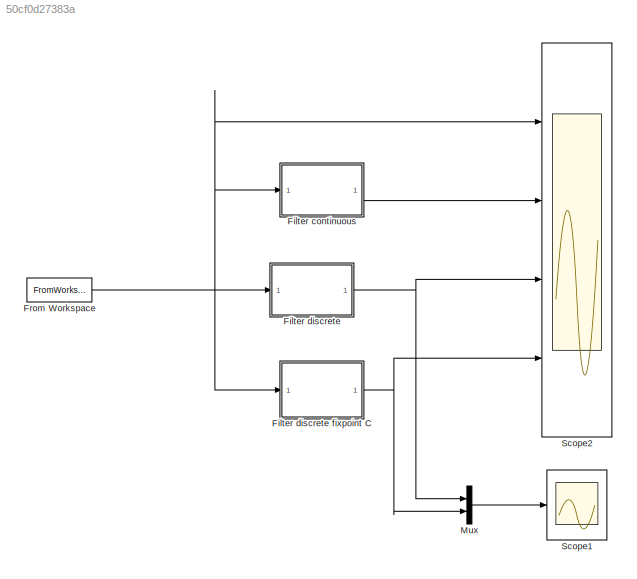
MODEL slx_50cf0d27383a
KIND model
CONFIG AbsTol = auto
CONFIG FixedStep = T
CONFIG MaxStep = auto
CONFIG MinStep = auto
CONFIG PreLoadFcn = poxi_init
CONFIG RelTol = 1e-3
CONFIG SampleTimeConstraint = Unconstrained
CONFIG Solver = ode4
CONFIG SolverMode = Auto
CONFIG SolverName = ode4
CONFIG StartTime = 0.0
CONFIG StopTime = 10
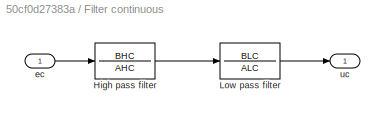
BLOCK [SubSystem] Filter continuous
  Ports = [1, 1]
  RequestExecContextInheritance = off
BLOCK [TransferFcn] Filter continuous/High pass filter
  Denominator = AHC
  Numerator = BHC
BLOCK [TransferFcn] Filter continuous/Low pass filter
  Denominator = ALC
  Numerator = BLC
BLOCK [Inport] Filter continuous/ec
  IconDisplay = Port number
BLOCK [Outport] Filter continuous/uc
  IconDisplay = Port number
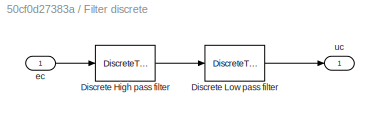
BLOCK [SubSystem] Filter discrete
  Ports = [1, 1]
  RequestExecContextInheritance = off
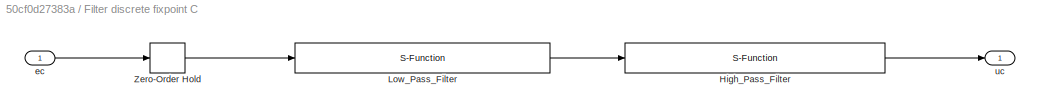
BLOCK [SubSystem] Filter discrete fixpoint C
  Ports = [1, 1]
  RequestExecContextInheritance = off
BLOCK [S-Function] Filter discrete fixpoint C/High_Pass_Filter
  FunctionName = High_Pass_Filter
  Ports = [1, 1]
BLOCK [S-Function] Filter discrete fixpoint C/Low_Pass_Filter
  FunctionName = Low_Pass_Filter
  Ports = [1, 1]
BLOCK [ZeroOrderHold] Filter discrete fixpoint C/Zero-Order Hold
  SampleTime = T
BLOCK [Inport] Filter discrete fixpoint C/ec
  IconDisplay = Port number
BLOCK [Outport] Filter discrete fixpoint C/uc
  IconDisplay = Port number
BLOCK [DiscreteTransferFcn] Filter discrete/Discrete High pass filter
  Denominator = AH
  InputPortMap = u0
  Numerator = BH
  Ports = [1, 1]
  SampleTime = T
BLOCK [DiscreteTransferFcn] Filter discrete/Discrete Low pass filter
  Denominator = AL
  InputPortMap = u0
  Numerator = BL
  Ports = [1, 1]
  SampleTime = T
BLOCK [Inport] Filter discrete/ec
  IconDisplay = Port number
BLOCK [Outport] Filter discrete/uc
  IconDisplay = Port number
BLOCK [FromWorkspace] From Workspace
  OutDataTypeStr = double
  SampleTime = T
  VariableName = signal
  ZeroCross = on
BLOCK [Mux] Mux
  DisplayOption = bar
  Inputs = 2
  Ports = [2, 1]
BLOCK [Scope] Scope1
  DataFormat = StructureWithTime
  Floating = off
  LimitDataPoints = off
  MaxDataPoints = 10000
  NumInputPorts = 1
  Ports = [1]
  SampleTime = 0
  SaveName = ScopeData1
  TimeRange = 5
  YMax = 0.003
  YMin = 0
BLOCK [Scope] Scope2
  DataFormat = StructureWithTime
  Floating = off
  LimitDataPoints = off
  MaxDataPoints = 10000
  NumInputPorts = 4
  Ports = [4]
  SampleTime = 0
  TimeRange = 5
  YMax = 0.003~5~5~5
  YMin = 0~-5~-5~-5
LINE Filter continuous/High pass filter:1 -> Filter continuous/Low pass filter:1
LINE Filter continuous/Low pass filter:1 -> Filter continuous/uc:1
LINE Filter continuous/ec:1 -> Filter continuous/High pass filter:1
LINE Filter continuous:1 -> Scope2:2
LINE Filter discrete fixpoint C/High_Pass_Filter:1 -> Filter discrete fixpoint C/uc:1
LINE Filter discrete fixpoint C/Low_Pass_Filter:1 -> Filter discrete fixpoint C/High_Pass_Filter:1
LINE Filter discrete fixpoint C/Zero-Order Hold:1 -> Filter discrete fixpoint C/Low_Pass_Filter:1
LINE Filter discrete fixpoint C/ec:1 -> Filter discrete fixpoint C/Zero-Order Hold:1
NET Filter discrete fixpoint C:1 -> Mux:2, Scope2:4
LINE Filter discrete/Discrete High pass filter:1 -> Filter discrete/Discrete Low pass filter:1
LINE Filter discrete/Discrete Low pass filter:1 -> Filter discrete/uc:1
LINE Filter discrete/ec:1 -> Filter discrete/Discrete High pass filter:1
NET Filter discrete:1 -> Mux:1, Scope2:3
NET From Workspace:1 -> Filter continuous:1, Filter discrete fixpoint C:1, Filter discrete:1, Scope2:1
LINE Mux:1 -> Scope1:1
note: NET lines group one-source signal fan-out (src -> all destinations, sorted); 1:1 wires keep LINE
